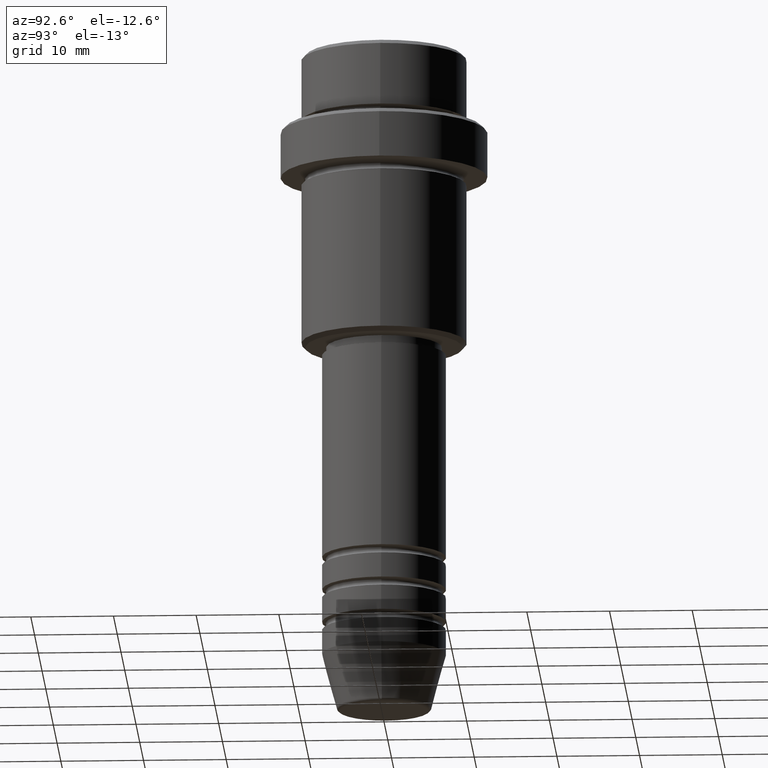
[diagram: clean part render]
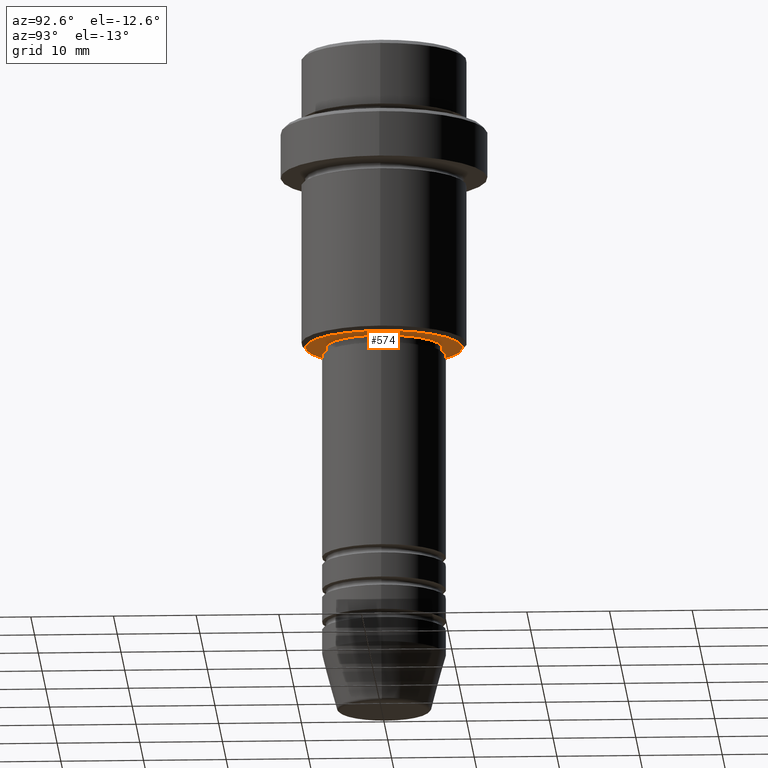
[diagram: same view with one face highlighted and labeled with its STEP entity id]
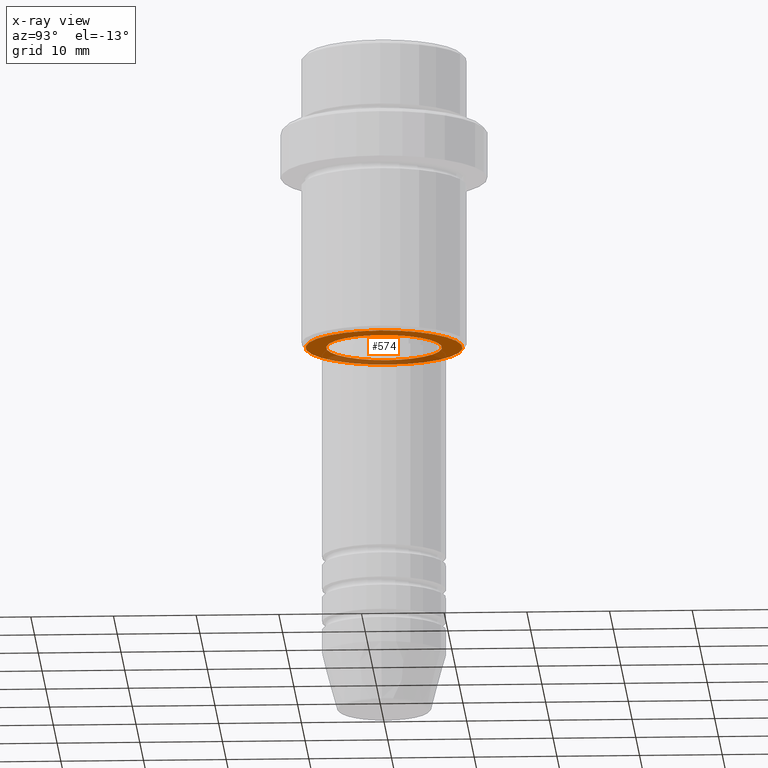
[diagram: x-ray of the same camera — body ghosted, the highlighted face saturated]
A machine part, auxiliary view. The second image highlights one B-rep face of the part: STEP entity #574.
The next image is the same camera in x-ray: the body ghosted, the highlighted face saturated — about 28% of this face is hidden behind the body in this view.
In plain terms, the highlighted planar face has unit normal (0, 0, -1).
Its self-contained STEP definition (entity closure, byte-faithful):
#3 = AXIS2_PLACEMENT_3D ( 'NONE', #93, #8, #314 ) ;
#8 = DIRECTION ( 'NONE',  ( -0.000000000000000000, -0.000000000000000000, 1.000000000000000000 ) ) ;
#45 = FACE_OUTER_BOUND ( 'NONE', #492, .T. ) ;
#54 = ORIENTED_EDGE ( 'NONE', *, *, #326, .T. ) ;
#71 = AXIS2_PLACEMENT_3D ( 'NONE', #599, #1046, #807 ) ;
#93 = CARTESIAN_POINT ( 'NONE',  ( 0.000000000000000000, 0.000000000000000000, -36.00000000000000000 ) ) ;
#193 = VERTEX_POINT ( 'NONE', #406 ) ;
#205 = CARTESIAN_POINT ( 'NONE',  ( -9.500000000000015987, 1.194030629168670258E-15, -36.00000000000000000 ) ) ;
#209 = CIRCLE ( 'NONE', #1019, 9.500000000000015987 ) ;
#216 = CARTESIAN_POINT ( 'NONE',  ( 6.999999999999993783, 0.000000000000000000, -36.00000000000000000 ) ) ;
#217 = EDGE_LOOP ( 'NONE', ( #1142, #240 ) ) ;
#240 = ORIENTED_EDGE ( 'NONE', *, *, #883, .T. ) ;
#314 = DIRECTION ( 'NONE',  ( 1.000000000000000000, 0.000000000000000000, 0.000000000000000000 ) ) ;
#326 = EDGE_CURVE ( 'NONE', #193, #1266, #1110, .T. ) ;
#333 = EDGE_CURVE ( 'NONE', #817, #446, #1194, .T. ) ;
#387 = PLANE ( 'NONE',  #71 ) ;
#394 = CARTESIAN_POINT ( 'NONE',  ( 0.000000000000000000, 0.000000000000000000, -36.00000000000000000 ) ) ;
#398 = FACE_BOUND ( 'NONE', #217, .T. ) ;
#406 = CARTESIAN_POINT ( 'NONE',  ( 9.500000000000015987, 0.000000000000000000, -36.00000000000000000 ) ) ;
#431 = CARTESIAN_POINT ( 'NONE',  ( 0.000000000000000000, 0.000000000000000000, -36.00000000000000000 ) ) ;
#446 = VERTEX_POINT ( 'NONE', #1233 ) ;
#492 = EDGE_LOOP ( 'NONE', ( #54, #1078 ) ) ;
#574 = ADVANCED_FACE ( 'NONE', ( #45, #398 ), #387, .T. ) ;
#592 = CIRCLE ( 'NONE', #689, 6.999999999999993783 ) ;
#599 = CARTESIAN_POINT ( 'NONE',  ( 0.000000000000000000, 10.00000000000000000, -36.00000000000000000 ) ) ;
#650 = DIRECTION ( 'NONE',  ( 1.000000000000000000, 0.000000000000000000, 0.000000000000000000 ) ) ;
#689 = AXIS2_PLACEMENT_3D ( 'NONE', #431, #1201, #650 ) ;
#807 = DIRECTION ( 'NONE',  ( -1.000000000000000000, 0.000000000000000000, -0.000000000000000000 ) ) ;
#817 = VERTEX_POINT ( 'NONE', #216 ) ;
#883 = EDGE_CURVE ( 'NONE', #446, #817, #592, .T. ) ;
#928 = DIRECTION ( 'NONE',  ( -1.000000000000000000, 0.000000000000000000, 0.000000000000000000 ) ) ;
#981 = DIRECTION ( 'NONE',  ( 0.000000000000000000, 0.000000000000000000, -1.000000000000000000 ) ) ;
#997 = CARTESIAN_POINT ( 'NONE',  ( 0.000000000000000000, 0.000000000000000000, -36.00000000000000000 ) ) ;
#1019 = AXIS2_PLACEMENT_3D ( 'NONE', #394, #1165, #928 ) ;
#1046 = DIRECTION ( 'NONE',  ( 0.000000000000000000, 0.000000000000000000, -1.000000000000000000 ) ) ;
#1078 = ORIENTED_EDGE ( 'NONE', *, *, #1148, .T. ) ;
#1110 = CIRCLE ( 'NONE', #1391, 9.500000000000015987 ) ;
#1142 = ORIENTED_EDGE ( 'NONE', *, *, #333, .T. ) ;
#1148 = EDGE_CURVE ( 'NONE', #1266, #193, #209, .T. ) ;
#1165 = DIRECTION ( 'NONE',  ( 0.000000000000000000, 0.000000000000000000, -1.000000000000000000 ) ) ;
#1194 = CIRCLE ( 'NONE', #3, 6.999999999999993783 ) ;
#1201 = DIRECTION ( 'NONE',  ( -0.000000000000000000, -0.000000000000000000, 1.000000000000000000 ) ) ;
#1233 = CARTESIAN_POINT ( 'NONE',  ( -6.999999999999993783, 8.572527594031465301E-16, -36.00000000000000000 ) ) ;
#1266 = VERTEX_POINT ( 'NONE', #205 ) ;
#1389 = DIRECTION ( 'NONE',  ( -1.000000000000000000, 0.000000000000000000, 0.000000000000000000 ) ) ;
#1391 = AXIS2_PLACEMENT_3D ( 'NONE', #997, #981, #1389 ) ;